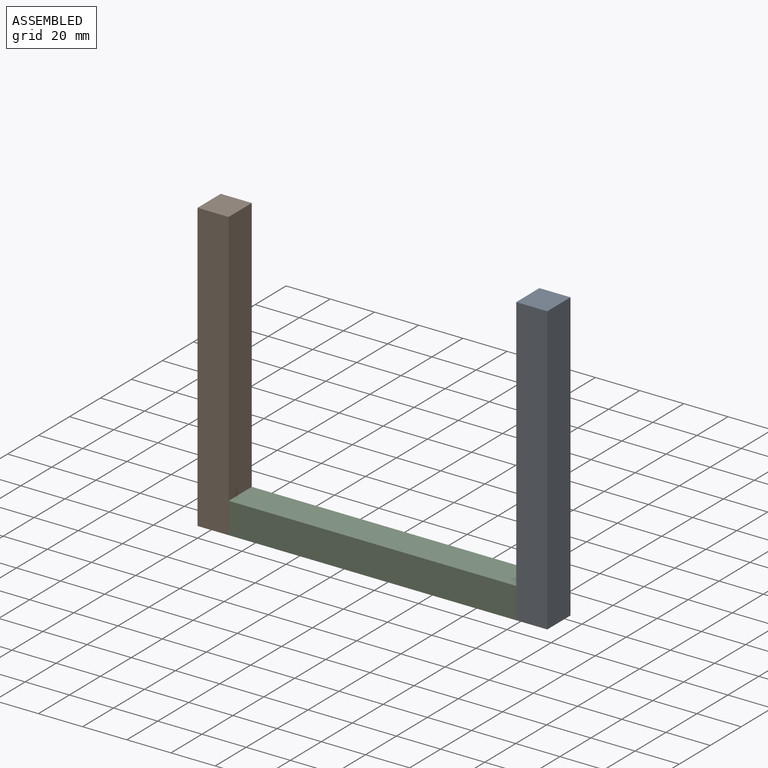
[diagram: assembled view]
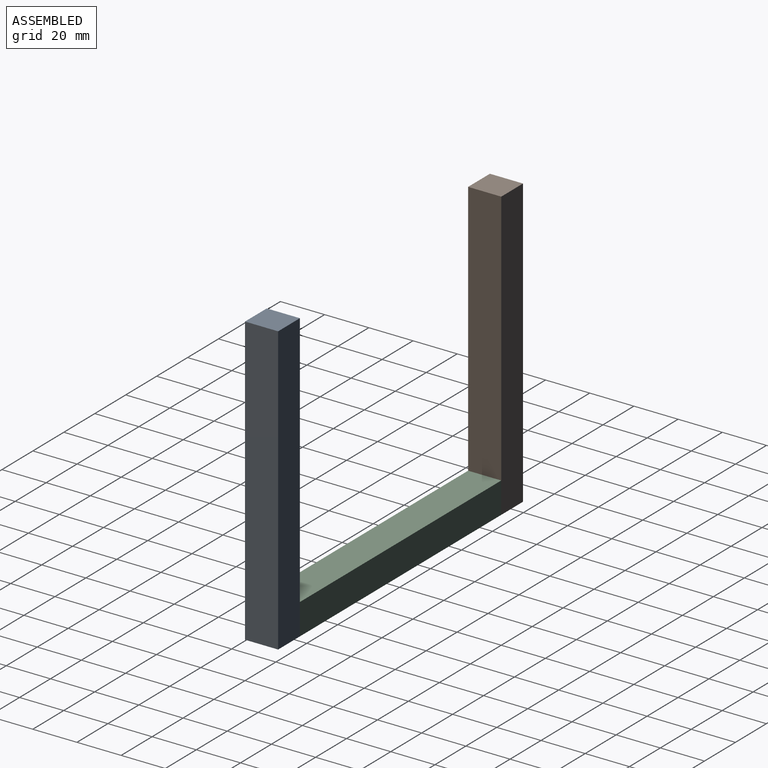
[diagram: assembled view, second angle]
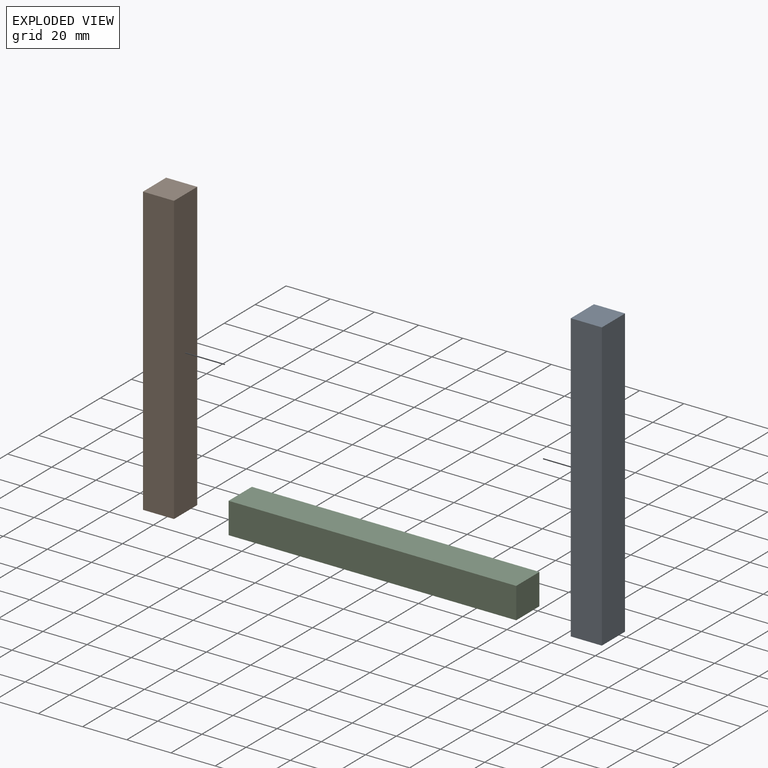
[diagram: exploded view]
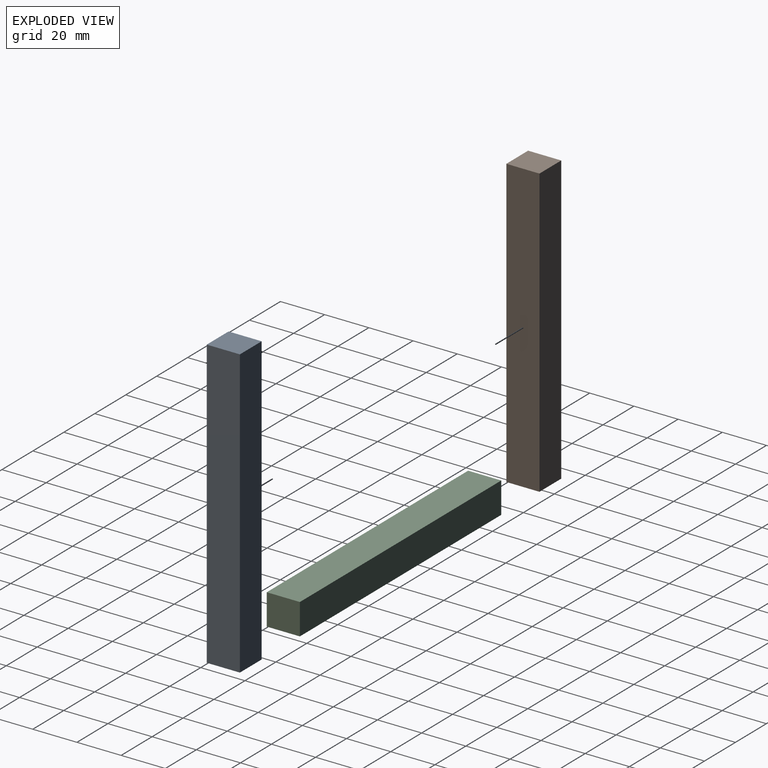
[diagram: exploded view, second angle]
ASSEMBLY  parts=3 mates=5
PART A: 6 faces, bbox 14.1x15x130.2 mm
  f0: plane 14.99x14.06mm, normal (0,0,1), area 210.7mm2, adj f1,f3,f4,f5
  f1: plane 130.17x14.99mm, normal (-1,0,0), area 1950.7mm2, adj f0,f2,f4,f5
  f2: plane 14.99x14.06mm, normal (0,0,-1), area 210.7mm2, adj f1,f3,f4,f5
  f3: plane 130.17x14.99mm, normal (1,0,0), area 1950.7mm2, adj f0,f2,f4,f5
  f4: plane 130.17x14.06mm, normal (0,-1,0), area 1830.3mm2, adj f0,f1,f2,f3
  f5: plane 130.17x14.06mm, normal (0,1,0), area 1830.3mm2, adj f0,f1,f2,f3
PART B: same geometry as A
PART C: same geometry as A
PLACE A rot(axis=(1,0,0),180deg) t=(-55.99,-36.75,44.45)mm fixed
PLACE B rot(axis=(1,0,0),180deg) t=(-200.22,-36.75,44.45)mm
PLACE C rot(axis=(0.71,0,-0.71),180deg) t=(-186.56,-36.75,-65.23)mm
MATE planar C.f3 <-> B.f0  axis (0,0,-1) through (-183.15,-29.26,-17.22)mm
MATE planar C.f2 <-> A.f1  axis (1,0,0) through (-118.06,-36.75,-3.16)mm
MATE planar B.f3 <-> C.f0  axis (1,0,0) through (-248.23,-29.26,47.86)mm
MATE planar A.f4 <-> C.f4  axis (0,1,0) through (-111.03,-21.76,47.86)mm
MATE planar C.f3 <-> A.f0  axis (0,0,-1) through (-118.06,-21.76,-17.22)mm
